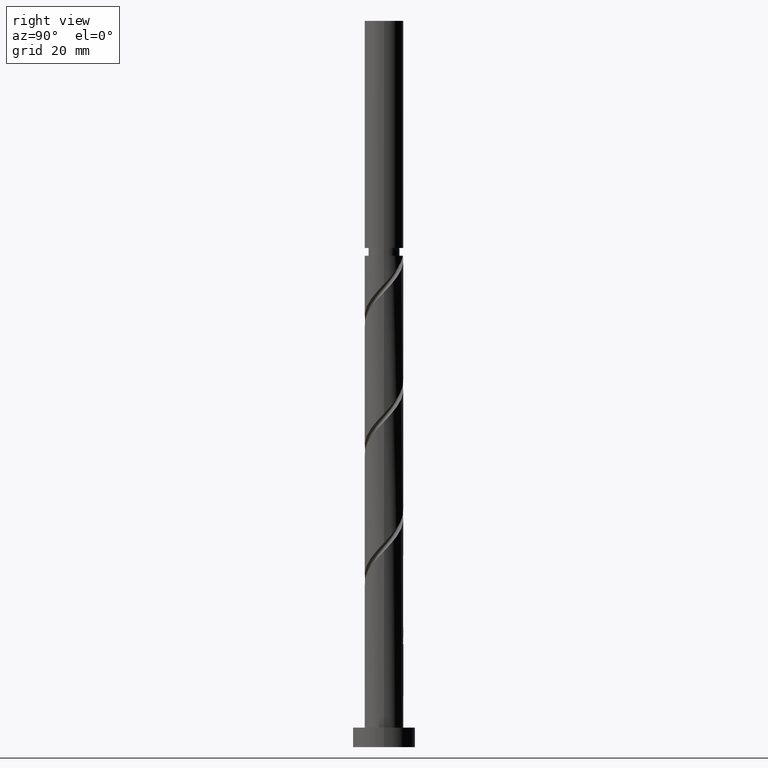
[diagram: clean part render]
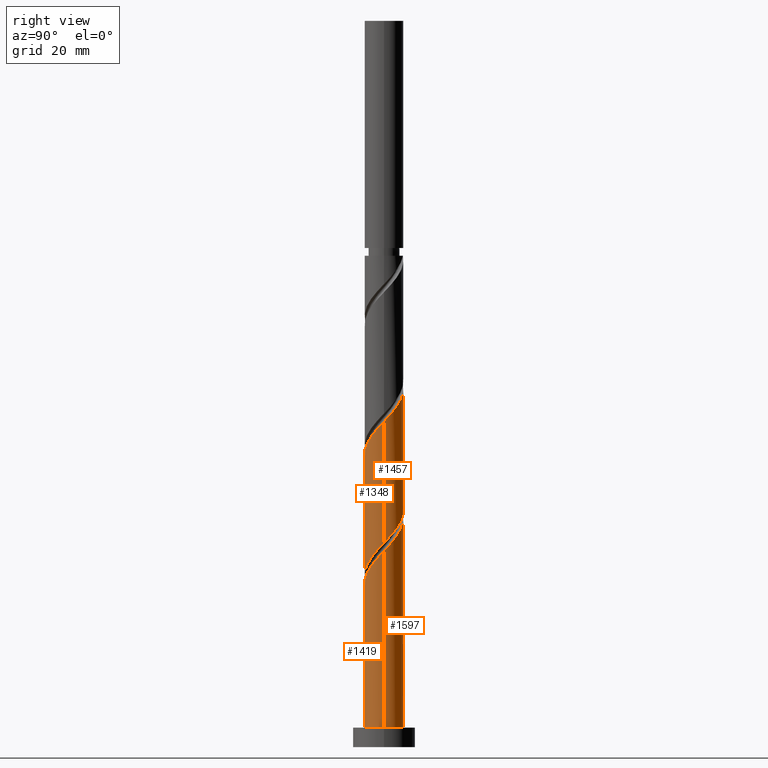
[diagram: same view with one multi-face feature highlighted, each face labeled with its STEP entity id]
A machine part, right view. The highlighted faces form ONE feature: a constant-radius fillet chain: 4 tangent blend faces with common blend radius 5 mm. The faces share edges in the B-rep.
Their STEP definitions:
[1] entity #1597 (Cylinder):
#5 = CARTESIAN_POINT ( 'NONE',  ( -3.310039237906718945, 3.804858702572656348, 31.39246738457750041 ) ) ;
#15 = CARTESIAN_POINT ( 'NONE',  ( -3.311684396980710599, 3.746030759990445436, 29.30913405124417892 ) ) ;
#29 = CARTESIAN_POINT ( 'NONE',  ( -0.9949874371066205203, 4.900000000000008349, 26.53135627346639325 ) ) ;
#48 = VERTEX_POINT ( 'NONE', #29 ) ;
#68 = CARTESIAN_POINT ( 'NONE',  ( 0.3498901989283815239, 5.030992581163166832, 27.22580071791083611 ) ) ;
#81 = CYLINDRICAL_SURFACE ( 'NONE', #872, 5.000000000000000000 ) ;
#95 = CARTESIAN_POINT ( 'NONE',  ( -5.000000000000007105, -3.065525810942137273E-15, 33.80112295158966162 ) ) ;
#96 = ORIENTED_EDGE ( 'NONE', *, *, #330, .T. ) ;
#130 = CARTESIAN_POINT ( 'NONE',  ( 5.000000000000008882, -1.794454133234422005E-16, 50.46778961825631882 ) ) ;
#143 = CARTESIAN_POINT ( 'NONE',  ( 4.475514850455503790, 2.229297383336807936, 52.92024516235528608 ) ) ;
#145 = CARTESIAN_POINT ( 'NONE',  ( -4.182022282074155939, 2.818510091388752858, 32.78135627346640035 ) ) ;
#160 = CARTESIAN_POINT ( 'NONE',  ( -4.741018197097065290, 1.588315603019298639, 65.42024516235527187 ) ) ;
#161 = VERTEX_POINT ( 'NONE', #130 ) ;
#170 = CARTESIAN_POINT ( 'NONE',  ( -4.741018197097065290, 1.588315603019298639, 32.08691182902195749 ) ) ;
#171 =( BOUNDED_CURVE ( )  B_SPLINE_CURVE ( 2, ( #178, #1136, #1003, #859, #15, #1524, #570, #713, #170, #1633, #1384, #1115, #324 ),
 .UNSPECIFIED., .F., .T. ) 
 B_SPLINE_CURVE_WITH_KNOTS ( ( 3, 2, 2, 2, 2, 2, 3 ),
 ( 0.000000000000000000, 0.01041666666666662966, 0.02083333333333337034, 0.03125000000000000000, 0.04166666666666662966, 0.05208333333333337034, 0.05453176698144637097 ),
 .UNSPECIFIED. ) 
 CURVE ( )  GEOMETRIC_REPRESENTATION_ITEM ( )  RATIONAL_B_SPLINE_CURVE ( ( 0.9090909090909183865, 0.9013135103398366432, 0.9090909090909183865, 0.9013135103398366432, 0.9090909090909183865, 0.9013135103398366432, 0.9090909090909183865, 0.9013135103398366432, 0.9090909090909183865, 0.9013135103398366432, 0.9090909090909183865, 0.9072628343904119985, 0.9062941362546385049 ) ) 
 REPRESENTATION_ITEM ( '' )  );
#177 = CARTESIAN_POINT ( 'NONE',  ( -0.3071292586678960879, 4.990558247177372841, 27.92024516235527898 ) ) ;
#178 = CARTESIAN_POINT ( 'NONE',  ( -0.9949874371066205203, 4.900000000000008349, 26.53135627346639325 ) ) ;
#186 = ORIENTED_EDGE ( 'NONE', *, *, #1642, .F. ) ;
#206 = EDGE_CURVE ( 'NONE', #161, #764, #1661, .T. ) ;
#249 = CARTESIAN_POINT ( 'NONE',  ( -0.3498901989283760283, 5.030992581163177491, 59.17024516235529319 ) ) ;
#264 = CARTESIAN_POINT ( 'NONE',  ( 3.310039237906730492, 3.804858702572660345, 55.00357849568861468 ) ) ;
#287 = CARTESIAN_POINT ( 'NONE',  ( -2.761260863840566682, 4.168385591787596489, 30.69802294013306465 ) ) ;
#294 = DIRECTION ( 'NONE',  ( 0.000000000000000000, 0.000000000000000000, 1.000000000000000000 ) ) ;
#306 = VERTEX_POINT ( 'NONE', #737 ) ;
#316 = CARTESIAN_POINT ( 'NONE',  ( -5.000000000000000000, 0.000000000000000000, 187.0000000000000000 ) ) ;
#324 = CARTESIAN_POINT ( 'NONE',  ( -5.000000000000007105, -3.065525810942137273E-15, 33.80112295158966162 ) ) ;
#330 = EDGE_CURVE ( 'NONE', #857, #865, #530, .T. ) ;
#352 = FACE_OUTER_BOUND ( 'NONE', #1152, .T. ) ;
#369 = LINE ( 'NONE', #1163, #1082 ) ;
#385 = CARTESIAN_POINT ( 'NONE',  ( 0.9641487162641800834, 4.950123913191589509, 57.78135627346639325 ) ) ;
#421 = CARTESIAN_POINT ( 'NONE',  ( 5.000000000000007994, 0.5025189076296053825, 51.00121598744561169 ) ) ;
#429 = CARTESIAN_POINT ( 'NONE',  ( -5.000000000000007105, -3.065525810942137273E-15, 67.13445628492299022 ) ) ;
#469 = VERTEX_POINT ( 'NONE', #95 ) ;
#493 = DIRECTION ( 'NONE',  ( -1.000000000000000000, 0.000000000000000000, 0.000000000000000000 ) ) ;
#530 = CIRCLE ( 'NONE', #1507, 5.000000000000000000 ) ;
#545 = CARTESIAN_POINT ( 'NONE',  ( -3.804858702572663010, 3.310039237906727383, 63.33691182902195749 ) ) ;
#563 = DIRECTION ( 'NONE',  ( -0.000000000000000000, -0.000000000000000000, -1.000000000000000000 ) ) ;
#569 = CARTESIAN_POINT ( 'NONE',  ( -4.769007418836828549, 1.640084675284861015, 34.17024516235528608 ) ) ;
#570 = CARTESIAN_POINT ( 'NONE',  ( -4.168385591787603595, 2.761260863840572899, 30.69802294013306110 ) ) ;
#577 = CARTESIAN_POINT ( 'NONE',  ( -4.475514850455492244, 2.229297383336808380, 33.47580071791084322 ) ) ;
#578 = CARTESIAN_POINT ( 'NONE',  ( -4.999999999999998224, 5.787114579681064564E-15, 35.92825626200978917 ) ) ;
#583 = CARTESIAN_POINT ( 'NONE',  ( -5.000000000000008882, 0.1537097582883592828, 66.97129259689485536 ) ) ;
#584 = ORIENTED_EDGE ( 'NONE', *, *, #1591, .F. ) ;
#609 = CARTESIAN_POINT ( 'NONE',  ( 0.000000000000000000, 0.000000000000000000, 187.0000000000000000 ) ) ;
#636 = EDGE_CURVE ( 'NONE', #306, #876, #1042, .T. ) ;
#692 = CARTESIAN_POINT ( 'NONE',  ( 3.746030759990448100, 3.311684396980707046, 54.30913405124416471 ) ) ;
#694 = CARTESIAN_POINT ( 'NONE',  ( -2.212482489774413086, 4.531912481002537518, 30.00357849568861113 ) ) ;
#701 = VECTOR ( 'NONE', #563, 1000.000000000000000 ) ;
#705 = DIRECTION ( 'NONE',  ( -0.000000000000000000, -0.000000000000000000, -1.000000000000000000 ) ) ;
#713 = CARTESIAN_POINT ( 'NONE',  ( -4.531912481002547288, 2.212482489774419303, 31.39246738457749686 ) ) ;
#719 = CARTESIAN_POINT ( 'NONE',  ( -0.9641487162641736441, 4.950123913191579739, 28.61468960679973250 ) ) ;
#731 = LINE ( 'NONE', #316, #1625 ) ;
#737 = CARTESIAN_POINT ( 'NONE',  ( -4.999999999999998224, 5.787114579681064564E-15, 35.92825626200978917 ) ) ;
#739 = ORIENTED_EDGE ( 'NONE', *, *, #1503, .T. ) ;
#748 = DIRECTION ( 'NONE',  ( -0.000000000000000000, -0.000000000000000000, -1.000000000000000000 ) ) ;
#764 = VERTEX_POINT ( 'NONE', #830 ) ;
#790 = CARTESIAN_POINT ( 'NONE',  ( -2.818510091388757743, 4.182022282074165709, 61.94802294013305755 ) ) ;
#807 = CARTESIAN_POINT ( 'NONE',  ( 1.588315603019300637, 4.741018197097065290, 57.08691182902194328 ) ) ;
#823 = EDGE_CURVE ( 'NONE', #48, #876, #995, .T. ) ;
#830 = CARTESIAN_POINT ( 'NONE',  ( -5.000000000000007105, -3.065525810942137273E-15, 67.13445628492299022 ) ) ;
#847 = CARTESIAN_POINT ( 'NONE',  ( -4.950123913191589509, 0.9641487162641770858, 66.11468960679972895 ) ) ;
#857 = VERTEX_POINT ( 'NONE', #1120 ) ;
#859 = CARTESIAN_POINT ( 'NONE',  ( -2.818510091388757743, 4.182022282074165709, 28.61468960679973961 ) ) ;
#865 = VERTEX_POINT ( 'NONE', #1637 ) ;
#872 = AXIS2_PLACEMENT_3D ( 'NONE', #609, #1690, #493 ) ;
#876 = VERTEX_POINT ( 'NONE', #1340 ) ;
#910 = ORIENTED_EDGE ( 'NONE', *, *, #206, .F. ) ;
#938 = AXIS2_PLACEMENT_3D ( 'NONE', #1224, #1744, #970 ) ;
#945 = ORIENTED_EDGE ( 'NONE', *, *, #636, .F. ) ;
#965 = CARTESIAN_POINT ( 'NONE',  ( 4.900000000000008349, 0.9949874371066211864, 51.53135627346640035 ) ) ;
#970 = DIRECTION ( 'NONE',  ( 0.000000000000000000, 1.000000000000000000, -1.387778780781445676E-15 ) ) ;
#979 = CARTESIAN_POINT ( 'NONE',  ( -1.588315603019294198, 4.741018197097059073, 29.30913405124417892 ) ) ;
#980 = CARTESIAN_POINT ( 'NONE',  ( 5.000000000000000000, 6.123233995736766282E-16, 187.0000000000000000 ) ) ;
#984 = CARTESIAN_POINT ( 'NONE',  ( -4.531912481002547288, 2.212482489774419303, 64.72580071791085743 ) ) ;
#995 = CIRCLE ( 'NONE', #938, 5.000000000000000000 ) ;
#1003 = CARTESIAN_POINT ( 'NONE',  ( -2.229297383336810157, 4.475514850455501126, 27.92024516235527543 ) ) ;
#1007 = CARTESIAN_POINT ( 'NONE',  ( -4.990558247177381723, 0.3071292586678987524, 66.80913405124417181 ) ) ;
#1042 =( BOUNDED_CURVE ( )  B_SPLINE_CURVE ( 2, ( #578, #1046, #1125, #569, #577, #145, #1227, #5, #287, #694, #979, #719, #177, #68, #1671 ),
 .UNSPECIFIED., .F., .T. ) 
 B_SPLINE_CURVE_WITH_KNOTS ( ( 3, 2, 2, 2, 2, 2, 2, 3 ),
 ( 0.9295317669814463502, 0.9375000000000000000, 0.9479166666666666297, 0.9583333333333333703, 0.9687500000000000000, 0.9791666666666666297, 0.9895833333333333703, 1.000000000000000000 ),
 .UNSPECIFIED. ) 
 CURVE ( )  GEOMETRIC_REPRESENTATION_ITEM ( )  RATIONAL_B_SPLINE_CURVE ( ( 0.9062941362546301782, 0.9031415850403345935, 0.9090909090909098378, 0.9013135103398283166, 0.9090909090909098378, 0.9013135103398283166, 0.9090909090909098378, 0.9013135103398283166, 0.9090909090909098378, 0.9013135103398283166, 0.9090909090909098378, 0.9013135103398283166, 0.9090909090909098378, 0.9013135103398283166, 0.9090909090909098378 ) ) 
 REPRESENTATION_ITEM ( '' )  );
#1046 = CARTESIAN_POINT ( 'NONE',  ( -4.999999999999998224, 0.5025189076296099344, 35.39482989282052472 ) ) ;
#1082 = VECTOR ( 'NONE', #748, 1000.000000000000000 ) ;
#1100 = CARTESIAN_POINT ( 'NONE',  ( 5.000000000000008882, -1.794454133234422005E-16, 50.46778961825631882 ) ) ;
#1105 = CARTESIAN_POINT ( 'NONE',  ( 0.000000000000000000, 0.000000000000000000, 5.000000000000000000 ) ) ;
#1115 = CARTESIAN_POINT ( 'NONE',  ( -5.000000000000008882, 0.1537097582883645286, 33.63795926356151966 ) ) ;
#1120 = CARTESIAN_POINT ( 'NONE',  ( 5.000000000000000000, 6.123233995736766282E-16, 5.000000000000000000 ) ) ;
#1125 = CARTESIAN_POINT ( 'NONE',  ( -4.899999999999997691, 0.9949874371066209644, 34.86468960679972895 ) ) ;
#1126 = LINE ( 'NONE', #980, #701 ) ;
#1136 = CARTESIAN_POINT ( 'NONE',  ( -1.640084675284862792, 4.769007418836840095, 27.22580071791083967 ) ) ;
#1152 = EDGE_LOOP ( 'NONE', ( #910, #739, #96, #186, #1397, #1416, #945, #584 ) ) ;
#1163 = CARTESIAN_POINT ( 'NONE',  ( -5.000000000000000000, 0.000000000000000000, 187.0000000000000000 ) ) ;
#1203 = CARTESIAN_POINT ( 'NONE',  ( -2.229297383336810157, 4.475514850455501126, 61.25357849568861468 ) ) ;
#1224 = CARTESIAN_POINT ( 'NONE',  ( 0.000000000000000000, 0.000000000000000000, 26.53135627346639325 ) ) ;
#1227 = CARTESIAN_POINT ( 'NONE',  ( -3.746030759990437886, 3.311684396980704825, 32.08691182902195749 ) ) ;
#1239 = CARTESIAN_POINT ( 'NONE',  ( 2.761260863840573343, 4.168385591787602706, 55.69802294013307176 ) ) ;
#1244 = DIRECTION ( 'NONE',  ( 1.000000000000000000, 0.000000000000000000, 0.000000000000000000 ) ) ;
#1332 = CARTESIAN_POINT ( 'NONE',  ( 4.769007418836840984, 1.640084675284861682, 52.22580071791085032 ) ) ;
#1340 = CARTESIAN_POINT ( 'NONE',  ( 0.9949874371066220746, 4.899999999999996803, 26.53135627346639325 ) ) ;
#1384 = CARTESIAN_POINT ( 'NONE',  ( -4.990558247177381723, 0.3071292586678987524, 33.47580071791084322 ) ) ;
#1397 = ORIENTED_EDGE ( 'NONE', *, *, #1497, .F. ) ;
#1416 = ORIENTED_EDGE ( 'NONE', *, *, #823, .T. ) ;
#1462 = CARTESIAN_POINT ( 'NONE',  ( 0.3071292586679018610, 4.990558247177382611, 58.47580071791082190 ) ) ;
#1476 = CARTESIAN_POINT ( 'NONE',  ( 4.182022282074167485, 2.818510091388755079, 53.61468960679973605 ) ) ;
#1497 = EDGE_CURVE ( 'NONE', #48, #469, #171, .T. ) ;
#1503 = EDGE_CURVE ( 'NONE', #161, #857, #1126, .T. ) ;
#1507 = AXIS2_PLACEMENT_3D ( 'NONE', #1105, #294, #1244 ) ;
#1520 = CARTESIAN_POINT ( 'NONE',  ( -4.168385591787603595, 2.761260863840572899, 64.03135627346640035 ) ) ;
#1524 = CARTESIAN_POINT ( 'NONE',  ( -3.804858702572663010, 3.310039237906727383, 30.00357849568862179 ) ) ;
#1584 = CARTESIAN_POINT ( 'NONE',  ( 2.212482489774421079, 4.531912481002545512, 56.39246738457751462 ) ) ;
#1588 = CARTESIAN_POINT ( 'NONE',  ( -0.9949874371066207424, 4.900000000000008349, 59.86468960679973605 ) ) ;
#1591 = EDGE_CURVE ( 'NONE', #764, #306, #731, .T. ) ;
#1597 = ADVANCED_FACE ( 'NONE', ( #352 ), #81, .T. ) ;
#1625 = VECTOR ( 'NONE', #705, 1000.000000000000000 ) ;
#1633 = CARTESIAN_POINT ( 'NONE',  ( -4.950123913191589509, 0.9641487162641770858, 32.78135627346640035 ) ) ;
#1637 = CARTESIAN_POINT ( 'NONE',  ( -5.000000000000000000, 0.000000000000000000, 5.000000000000000000 ) ) ;
#1642 = EDGE_CURVE ( 'NONE', #469, #865, #369, .T. ) ;
#1661 =( BOUNDED_CURVE ( )  B_SPLINE_CURVE ( 2, ( #1100, #421, #965, #1332, #143, #1476, #692, #264, #1239, #1584, #807, #385, #1462, #249, #1588, #1743, #1203, #790, #1726, #545, #1520, #984, #160, #847, #1007, #583, #429 ),
 .UNSPECIFIED., .F., .T. ) 
 B_SPLINE_CURVE_WITH_KNOTS ( ( 3, 2, 2, 2, 2, 2, 2, 2, 2, 2, 2, 2, 2, 3 ),
 ( 0.1795317669814463502, 0.1875000000000000000, 0.1979166666666666297, 0.2083333333333333703, 0.2187500000000000000, 0.2291666666666666297, 0.2395833333333333703, 0.2500000000000000000, 0.2604166666666666297, 0.2708333333333333703, 0.2812500000000000000, 0.2916666666666666297, 0.3020833333333333703, 0.3045317669814464612 ),
 .UNSPECIFIED. ) 
 CURVE ( )  GEOMETRIC_REPRESENTATION_ITEM ( )  RATIONAL_B_SPLINE_CURVE ( ( 0.9062941362546386159, 0.9031415850403428092, 0.9090909090909183865, 0.9013135103398366432, 0.9090909090909183865, 0.9013135103398366432, 0.9090909090909183865, 0.9013135103398366432, 0.9090909090909183865, 0.9013135103398366432, 0.9090909090909183865, 0.9013135103398366432, 0.9090909090909183865, 0.9013135103398366432, 0.9090909090909183865, 0.9013135103398366432, 0.9090909090909183865, 0.9013135103398366432, 0.9090909090909183865, 0.9013135103398366432, 0.9090909090909183865, 0.9013135103398366432, 0.9090909090909183865, 0.9013135103398366432, 0.9090909090909183865, 0.9072628343904119985, 0.9062941362546385049 ) ) 
 REPRESENTATION_ITEM ( '' )  );
#1671 = CARTESIAN_POINT ( 'NONE',  ( 0.9949874371066220746, 4.899999999999996803, 26.53135627346638969 ) ) ;
#1690 = DIRECTION ( 'NONE',  ( -0.000000000000000000, -0.000000000000000000, -1.000000000000000000 ) ) ;
#1726 = CARTESIAN_POINT ( 'NONE',  ( -3.311684396980710599, 3.746030759990445436, 62.64246738457750041 ) ) ;
#1743 = CARTESIAN_POINT ( 'NONE',  ( -1.640084675284862792, 4.769007418836840095, 60.55913405124417892 ) ) ;
#1744 = DIRECTION ( 'NONE',  ( -3.851859888774468203E-31, -1.734723475976806700E-15, -1.000000000000000000 ) ) ;
[2] entity #1419 (Cylinder):
#51 = FACE_OUTER_BOUND ( 'NONE', #559, .T. ) ;
#53 = CARTESIAN_POINT ( 'NONE',  ( 4.168385591787601818, -2.761260863840574231, 47.36468960679973605 ) ) ;
#61 = CARTESIAN_POINT ( 'NONE',  ( -3.310039237906727827, -3.804858702572662121, 38.33691182902193617 ) ) ;
#88 = EDGE_CURVE ( 'NONE', #865, #857, #1471, .T. ) ;
#95 = CARTESIAN_POINT ( 'NONE',  ( -5.000000000000007105, -3.065525810942137273E-15, 33.80112295158966162 ) ) ;
#130 = CARTESIAN_POINT ( 'NONE',  ( 5.000000000000008882, -1.794454133234422005E-16, 50.46778961825631882 ) ) ;
#139 = AXIS2_PLACEMENT_3D ( 'NONE', #814, #940, #1084 ) ;
#150 = ORIENTED_EDGE ( 'NONE', *, *, #968, .F. ) ;
#153 = DIRECTION ( 'NONE',  ( -1.000000000000000000, 0.000000000000000000, 0.000000000000000000 ) ) ;
#159 = CARTESIAN_POINT ( 'NONE',  ( -1.588315603019300193, -4.741018197097065290, 40.42024516235527898 ) ) ;
#161 = VERTEX_POINT ( 'NONE', #130 ) ;
#230 =( BOUNDED_CURVE ( )  B_SPLINE_CURVE ( 2, ( #1140, #999, #1654, #1005, #1380, #734, #336, #61, #465, #572, #159, #1271, #1412, #983, #1119, #1518, #319, #310, #708, #611, #53, #990, #854, #602, #716, #1394, #845 ),
 .UNSPECIFIED., .F., .T. ) 
 B_SPLINE_CURVE_WITH_KNOTS ( ( 3, 2, 2, 2, 2, 2, 2, 2, 2, 2, 2, 2, 2, 3 ),
 ( 0.05453176698144637791, 0.06250000000000000000, 0.07291666666666662966, 0.08333333333333337034, 0.09375000000000000000, 0.1041666666666666297, 0.1145833333333333703, 0.1250000000000000000, 0.1354166666666666297, 0.1458333333333333703, 0.1562500000000000000, 0.1666666666666666297, 0.1770833333333333703, 0.1795317669814463502 ),
 .UNSPECIFIED. ) 
 CURVE ( )  GEOMETRIC_REPRESENTATION_ITEM ( )  RATIONAL_B_SPLINE_CURVE ( ( 0.9062941362546385049, 0.9031415850403428092, 0.9090909090909183865, 0.9013135103398366432, 0.9090909090909183865, 0.9013135103398366432, 0.9090909090909183865, 0.9013135103398366432, 0.9090909090909183865, 0.9013135103398366432, 0.9090909090909183865, 0.9013135103398366432, 0.9090909090909183865, 0.9013135103398366432, 0.9090909090909183865, 0.9013135103398366432, 0.9090909090909183865, 0.9013135103398366432, 0.9090909090909183865, 0.9013135103398366432, 0.9090909090909183865, 0.9013135103398366432, 0.9090909090909183865, 0.9013135103398366432, 0.9090909090909183865, 0.9072628343904121095, 0.9062941362546386159 ) ) 
 REPRESENTATION_ITEM ( '' )  );
#310 = CARTESIAN_POINT ( 'NONE',  ( 2.818510091388755079, -4.182022282074167485, 45.28135627346639325 ) ) ;
#319 = CARTESIAN_POINT ( 'NONE',  ( 2.229297383336807936, -4.475514850455503790, 44.58691182902195038 ) ) ;
#336 = CARTESIAN_POINT ( 'NONE',  ( -3.746030759990445436, -3.311684396980708822, 37.64246738457750752 ) ) ;
#369 = LINE ( 'NONE', #1163, #1082 ) ;
#423 = AXIS2_PLACEMENT_3D ( 'NONE', #1011, #1651, #153 ) ;
#465 = CARTESIAN_POINT ( 'NONE',  ( -2.761260863840572899, -4.168385591787603595, 39.03135627346638614 ) ) ;
#469 = VERTEX_POINT ( 'NONE', #95 ) ;
#559 = EDGE_LOOP ( 'NONE', ( #887, #150, #1442, #1019 ) ) ;
#563 = DIRECTION ( 'NONE',  ( -0.000000000000000000, -0.000000000000000000, -1.000000000000000000 ) ) ;
#572 = CARTESIAN_POINT ( 'NONE',  ( -2.212482489774421079, -4.531912481002546400, 39.72580071791085032 ) ) ;
#602 = CARTESIAN_POINT ( 'NONE',  ( 4.950123913191589509, -0.9641487162641798614, 49.44802294013305755 ) ) ;
#611 = CARTESIAN_POINT ( 'NONE',  ( 3.804858702572662121, -3.310039237906727827, 46.67024516235527898 ) ) ;
#701 = VECTOR ( 'NONE', #563, 1000.000000000000000 ) ;
#708 = CARTESIAN_POINT ( 'NONE',  ( 3.311684396980709266, -3.746030759990445880, 45.97580071791082901 ) ) ;
#716 = CARTESIAN_POINT ( 'NONE',  ( 4.990558247177382611, -0.3071292586679017500, 50.14246738457749331 ) ) ;
#734 = CARTESIAN_POINT ( 'NONE',  ( -4.182022282074166597, -2.818510091388756411, 36.94802294013306465 ) ) ;
#748 = DIRECTION ( 'NONE',  ( -0.000000000000000000, -0.000000000000000000, -1.000000000000000000 ) ) ;
#814 = CARTESIAN_POINT ( 'NONE',  ( 0.000000000000000000, 0.000000000000000000, 5.000000000000000000 ) ) ;
#845 = CARTESIAN_POINT ( 'NONE',  ( 5.000000000000008882, -1.794454133234422005E-16, 50.46778961825631882 ) ) ;
#854 = CARTESIAN_POINT ( 'NONE',  ( 4.741018197097066178, -1.588315603019300415, 48.75357849568860757 ) ) ;
#857 = VERTEX_POINT ( 'NONE', #1120 ) ;
#865 = VERTEX_POINT ( 'NONE', #1637 ) ;
#887 = ORIENTED_EDGE ( 'NONE', *, *, #1503, .F. ) ;
#940 = DIRECTION ( 'NONE',  ( 0.000000000000000000, 0.000000000000000000, 1.000000000000000000 ) ) ;
#968 = EDGE_CURVE ( 'NONE', #469, #161, #230, .T. ) ;
#980 = CARTESIAN_POINT ( 'NONE',  ( 5.000000000000000000, 6.123233995736766282E-16, 187.0000000000000000 ) ) ;
#983 = CARTESIAN_POINT ( 'NONE',  ( 0.3498901989283792480, -5.030992581163177491, 42.50357849568860757 ) ) ;
#990 = CARTESIAN_POINT ( 'NONE',  ( 4.531912481002545512, -2.212482489774421079, 48.05913405124417892 ) ) ;
#999 = CARTESIAN_POINT ( 'NONE',  ( -5.000000000000007994, -0.5025189076296103785, 34.33454932077893318 ) ) ;
#1005 = CARTESIAN_POINT ( 'NONE',  ( -4.769007418836840984, -1.640084675284861904, 35.55913405124415760 ) ) ;
#1011 = CARTESIAN_POINT ( 'NONE',  ( 0.000000000000000000, 0.000000000000000000, 187.0000000000000000 ) ) ;
#1019 = ORIENTED_EDGE ( 'NONE', *, *, #88, .T. ) ;
#1082 = VECTOR ( 'NONE', #748, 1000.000000000000000 ) ;
#1084 = DIRECTION ( 'NONE',  ( 1.000000000000000000, 0.000000000000000000, 0.000000000000000000 ) ) ;
#1119 = CARTESIAN_POINT ( 'NONE',  ( 0.9949874371066211864, -4.900000000000008349, 43.19802294013305755 ) ) ;
#1120 = CARTESIAN_POINT ( 'NONE',  ( 5.000000000000000000, 6.123233995736766282E-16, 5.000000000000000000 ) ) ;
#1126 = LINE ( 'NONE', #980, #701 ) ;
#1140 = CARTESIAN_POINT ( 'NONE',  ( -5.000000000000007105, -3.065525810942137273E-15, 33.80112295158966162 ) ) ;
#1163 = CARTESIAN_POINT ( 'NONE',  ( -5.000000000000000000, 0.000000000000000000, 187.0000000000000000 ) ) ;
#1271 = CARTESIAN_POINT ( 'NONE',  ( -0.9641487162641770858, -4.950123913191589509, 41.11468960679972895 ) ) ;
#1380 = CARTESIAN_POINT ( 'NONE',  ( -4.475514850455501126, -2.229297383336809268, 36.25357849568862179 ) ) ;
#1394 = CARTESIAN_POINT ( 'NONE',  ( 5.000000000000008882, -0.1537097582883694968, 50.30462593022816264 ) ) ;
#1409 = CYLINDRICAL_SURFACE ( 'NONE', #423, 5.000000000000000000 ) ;
#1412 = CARTESIAN_POINT ( 'NONE',  ( -0.3071292586678989744, -4.990558247177381723, 41.80913405124417181 ) ) ;
#1419 = ADVANCED_FACE ( 'NONE', ( #51 ), #1409, .T. ) ;
#1442 = ORIENTED_EDGE ( 'NONE', *, *, #1642, .T. ) ;
#1471 = CIRCLE ( 'NONE', #139, 5.000000000000000000 ) ;
#1503 = EDGE_CURVE ( 'NONE', #161, #857, #1126, .T. ) ;
#1518 = CARTESIAN_POINT ( 'NONE',  ( 1.640084675284861682, -4.769007418836840984, 43.89246738457750041 ) ) ;
#1637 = CARTESIAN_POINT ( 'NONE',  ( -5.000000000000000000, 0.000000000000000000, 5.000000000000000000 ) ) ;
#1642 = EDGE_CURVE ( 'NONE', #469, #865, #369, .T. ) ;
#1651 = DIRECTION ( 'NONE',  ( -0.000000000000000000, -0.000000000000000000, -1.000000000000000000 ) ) ;
#1654 = CARTESIAN_POINT ( 'NONE',  ( -4.900000000000008349, -0.9949874371066216305, 34.86468960679972184 ) ) ;
[3] entity #1348 (Cylinder):
#27 = CARTESIAN_POINT ( 'NONE',  ( 0.9949874371066211864, -4.900000000000008349, 76.53135627346640035 ) ) ;
#36 = CARTESIAN_POINT ( 'NONE',  ( 4.741018197097066178, -1.588315603019300415, 82.08691182902191485 ) ) ;
#38 = CARTESIAN_POINT ( 'NONE',  ( -3.804858702572657680, -3.310039237906718057, 39.72580071791085032 ) ) ;
#43 = CARTESIAN_POINT ( 'NONE',  ( -4.900000000000008349, -0.9949874371066216305, 68.19802294013307176 ) ) ;
#46 = CARTESIAN_POINT ( 'NONE',  ( -4.950123913191580627, -0.9641487162641722009, 36.94802294013305044 ) ) ;
#69 = VERTEX_POINT ( 'NONE', #1349 ) ;
#121 = ORIENTED_EDGE ( 'NONE', *, *, #651, .F. ) ;
#166 = CARTESIAN_POINT ( 'NONE',  ( 4.990558247177382611, -0.3071292586679017500, 83.47580071791082901 ) ) ;
#168 = CARTESIAN_POINT ( 'NONE',  ( -2.229297383336808380, -4.475514850455492244, 41.80913405124417892 ) ) ;
#175 = CARTESIAN_POINT ( 'NONE',  ( -4.168385591787596489, -2.761260863840565793, 39.03135627346639325 ) ) ;
#181 = CARTESIAN_POINT ( 'NONE',  ( 4.950123913191589509, -0.9641487162641798614, 82.78135627346640035 ) ) ;
#184 = CARTESIAN_POINT ( 'NONE',  ( -4.990558247177372841, -0.3071292586678953662, 36.25357849568862889 ) ) ;
#201 = LINE ( 'NONE', #756, #677 ) ;
#297 = EDGE_CURVE ( 'NONE', #1212, #306, #1723, .T. ) ;
#302 = CARTESIAN_POINT ( 'NONE',  ( 5.000000000000008882, -1.794454133234422005E-16, 83.80112295158966162 ) ) ;
#304 = CARTESIAN_POINT ( 'NONE',  ( -0.9949874371066216305, -4.899999999999997691, 43.19802294013305044 ) ) ;
#306 = VERTEX_POINT ( 'NONE', #737 ) ;
#316 = CARTESIAN_POINT ( 'NONE',  ( -5.000000000000000000, 0.000000000000000000, 187.0000000000000000 ) ) ;
#321 = CARTESIAN_POINT ( 'NONE',  ( 4.999999999999999112, 6.968463550727070010E-15, 52.59492292867647478 ) ) ;
#326 = CARTESIAN_POINT ( 'NONE',  ( -4.182022282074166597, -2.818510091388756411, 70.28135627346638614 ) ) ;
#329 = CARTESIAN_POINT ( 'NONE',  ( 4.475514850455490468, -2.229297383336810157, 50.14246738457751462 ) ) ;
#425 = CYLINDRICAL_SURFACE ( 'NONE', #1408, 5.000000000000000000 ) ;
#435 = CARTESIAN_POINT ( 'NONE',  ( 3.311684396980709266, -3.746030759990445880, 79.30913405124415760 ) ) ;
#436 = CARTESIAN_POINT ( 'NONE',  ( 3.746030759990437442, -3.311684396980706602, 48.75357849568861468 ) ) ;
#441 = CARTESIAN_POINT ( 'NONE',  ( 0.9641487162641707576, -4.950123913191579739, 45.28135627346638614 ) ) ;
#449 = CARTESIAN_POINT ( 'NONE',  ( 5.000000000000008882, -0.1537097582883729940, 83.63795926356148414 ) ) ;
#456 = CARTESIAN_POINT ( 'NONE',  ( -4.769007418836840984, -1.640084675284861904, 68.89246738457750041 ) ) ;
#523 = CARTESIAN_POINT ( 'NONE',  ( 0.000000000000000000, 0.000000000000000000, 187.0000000000000000 ) ) ;
#558 = CARTESIAN_POINT ( 'NONE',  ( 1.588315603019292865, -4.741018197097059073, 45.97580071791083611 ) ) ;
#574 = CARTESIAN_POINT ( 'NONE',  ( 4.182022282074153274, -2.818510091388755079, 49.44802294013307176 ) ) ;
#581 = CARTESIAN_POINT ( 'NONE',  ( 2.229297383336807936, -4.475514850455503790, 77.92024516235527187 ) ) ;
#590 = CARTESIAN_POINT ( 'NONE',  ( -5.000000000000007105, -3.065525810942137273E-15, 67.13445628492299022 ) ) ;
#593 = CARTESIAN_POINT ( 'NONE',  ( -4.999999999999998224, -0.1537097582883631686, 36.09141995003794534 ) ) ;
#651 = EDGE_CURVE ( 'NONE', #69, #1212, #201, .T. ) ;
#670 = ORIENTED_EDGE ( 'NONE', *, *, #1591, .T. ) ;
#677 = VECTOR ( 'NONE', #1124, 1000.000000000000000 ) ;
#705 = DIRECTION ( 'NONE',  ( -0.000000000000000000, -0.000000000000000000, -1.000000000000000000 ) ) ;
#718 = CARTESIAN_POINT ( 'NONE',  ( 2.212482489774412642, -4.531912481002538406, 46.67024516235528608 ) ) ;
#731 = LINE ( 'NONE', #316, #1625 ) ;
#737 = CARTESIAN_POINT ( 'NONE',  ( -4.999999999999998224, 5.787114579681064564E-15, 35.92825626200978917 ) ) ;
#744 = CARTESIAN_POINT ( 'NONE',  ( 3.804858702572662121, -3.310039237906727827, 80.00357849568860047 ) ) ;
#756 = CARTESIAN_POINT ( 'NONE',  ( 5.000000000000000000, 6.123233995736766282E-16, 187.0000000000000000 ) ) ;
#764 = VERTEX_POINT ( 'NONE', #830 ) ;
#811 = FACE_OUTER_BOUND ( 'NONE', #1669, .T. ) ;
#830 = CARTESIAN_POINT ( 'NONE',  ( -5.000000000000007105, -3.065525810942137273E-15, 67.13445628492299022 ) ) ;
#837 = CARTESIAN_POINT ( 'NONE',  ( -4.475514850455501126, -2.229297383336809268, 69.58691182902195749 ) ) ;
#838 = CARTESIAN_POINT ( 'NONE',  ( 4.899999999999997691, -0.9949874371066218526, 51.53135627346640035 ) ) ;
#856 = CARTESIAN_POINT ( 'NONE',  ( 4.999999999999999112, -0.5025189076296037172, 52.06149655948720323 ) ) ;
#863 = CARTESIAN_POINT ( 'NONE',  ( -0.9641487162641770858, -4.950123913191589509, 74.44802294013307176 ) ) ;
#873 = CARTESIAN_POINT ( 'NONE',  ( -0.3071292586678989744, -4.990558247177381723, 75.14246738457750041 ) ) ;
#941 = ORIENTED_EDGE ( 'NONE', *, *, #297, .F. ) ;
#954 = EDGE_CURVE ( 'NONE', #764, #69, #1437, .T. ) ;
#974 = CARTESIAN_POINT ( 'NONE',  ( 2.761260863840563573, -4.168385591787598266, 47.36468960679974316 ) ) ;
#1124 = DIRECTION ( 'NONE',  ( -0.000000000000000000, -0.000000000000000000, -1.000000000000000000 ) ) ;
#1130 = CARTESIAN_POINT ( 'NONE',  ( -5.000000000000006217, -0.5025189076296153745, 67.66788265411226178 ) ) ;
#1132 = CARTESIAN_POINT ( 'NONE',  ( -4.741018197097059073, -1.588315603019292865, 37.64246738457752173 ) ) ;
#1157 = CARTESIAN_POINT ( 'NONE',  ( 0.3498901989283792480, -5.030992581163177491, 75.83691182902195749 ) ) ;
#1212 = VERTEX_POINT ( 'NONE', #1586 ) ;
#1222 = ORIENTED_EDGE ( 'NONE', *, *, #954, .F. ) ;
#1249 = CARTESIAN_POINT ( 'NONE',  ( -2.212482489774421079, -4.531912481002546400, 73.05913405124415760 ) ) ;
#1258 = CARTESIAN_POINT ( 'NONE',  ( -2.818510091388753303, -4.182022282074155939, 41.11468960679972184 ) ) ;
#1265 = CARTESIAN_POINT ( 'NONE',  ( -4.531912481002538406, -2.212482489774412642, 38.33691182902195038 ) ) ;
#1280 = CARTESIAN_POINT ( 'NONE',  ( -3.310039237906727827, -3.804858702572662121, 71.67024516235530029 ) ) ;
#1348 = ADVANCED_FACE ( 'NONE', ( #811 ), #425, .T. ) ;
#1349 = CARTESIAN_POINT ( 'NONE',  ( 5.000000000000008882, -1.794454133234422005E-16, 83.80112295158966162 ) ) ;
#1372 = CARTESIAN_POINT ( 'NONE',  ( -3.311684396980706158, -3.746030759990437442, 40.42024516235529319 ) ) ;
#1396 = CARTESIAN_POINT ( 'NONE',  ( 0.3071292586678939784, -4.990558247177372841, 44.58691182902195749 ) ) ;
#1403 = CARTESIAN_POINT ( 'NONE',  ( 4.168385591787601818, -2.761260863840574231, 80.69802294013304333 ) ) ;
#1408 = AXIS2_PLACEMENT_3D ( 'NONE', #523, #1721, #1730 ) ;
#1437 =( BOUNDED_CURVE ( )  B_SPLINE_CURVE ( 2, ( #590, #1130, #43, #456, #837, #326, #1535, #1280, #1664, #1249, #1504, #863, #873, #1157, #27, #1646, #581, #1511, #435, #744, #1403, #1636, #36, #181, #166, #449, #302 ),
 .UNSPECIFIED., .F., .T. ) 
 B_SPLINE_CURVE_WITH_KNOTS ( ( 3, 2, 2, 2, 2, 2, 2, 2, 2, 2, 2, 2, 2, 3 ),
 ( 0.3045317669814464612, 0.3125000000000000000, 0.3229166666666666297, 0.3333333333333333703, 0.3437500000000000000, 0.3541666666666666297, 0.3645833333333333703, 0.3750000000000000000, 0.3854166666666666297, 0.3958333333333333703, 0.4062500000000000000, 0.4166666666666666297, 0.4270833333333333703, 0.4295317669814462946 ),
 .UNSPECIFIED. ) 
 CURVE ( )  GEOMETRIC_REPRESENTATION_ITEM ( )  RATIONAL_B_SPLINE_CURVE ( ( 0.9062941362546385049, 0.9031415850403430312, 0.9090909090909183865, 0.9013135103398366432, 0.9090909090909183865, 0.9013135103398366432, 0.9090909090909183865, 0.9013135103398366432, 0.9090909090909183865, 0.9013135103398366432, 0.9090909090909183865, 0.9013135103398366432, 0.9090909090909183865, 0.9013135103398366432, 0.9090909090909183865, 0.9013135103398366432, 0.9090909090909183865, 0.9013135103398366432, 0.9090909090909183865, 0.9013135103398366432, 0.9090909090909183865, 0.9013135103398366432, 0.9090909090909183865, 0.9013135103398366432, 0.9090909090909183865, 0.9072628343904121095, 0.9062941362546386159 ) ) 
 REPRESENTATION_ITEM ( '' )  );
#1504 = CARTESIAN_POINT ( 'NONE',  ( -1.588315603019300193, -4.741018197097065290, 73.75357849568860047 ) ) ;
#1505 = CARTESIAN_POINT ( 'NONE',  ( 4.769007418836825885, -1.640084675284864346, 50.83691182902194328 ) ) ;
#1511 = CARTESIAN_POINT ( 'NONE',  ( 2.818510091388755079, -4.182022282074167485, 78.61468960679975737 ) ) ;
#1528 = CARTESIAN_POINT ( 'NONE',  ( -4.999999999999998224, 5.787114579681064564E-15, 35.92825626200978917 ) ) ;
#1535 = CARTESIAN_POINT ( 'NONE',  ( -3.746030759990445436, -3.311684396980708822, 70.97580071791082901 ) ) ;
#1586 = CARTESIAN_POINT ( 'NONE',  ( 4.999999999999999112, 6.968463550727070010E-15, 52.59492292867647478 ) ) ;
#1591 = EDGE_CURVE ( 'NONE', #764, #306, #731, .T. ) ;
#1625 = VECTOR ( 'NONE', #705, 1000.000000000000000 ) ;
#1626 = CARTESIAN_POINT ( 'NONE',  ( -0.3498901989283830782, -5.030992581163167721, 43.89246738457751462 ) ) ;
#1636 = CARTESIAN_POINT ( 'NONE',  ( 4.531912481002545512, -2.212482489774421079, 81.39246738457750041 ) ) ;
#1638 = CARTESIAN_POINT ( 'NONE',  ( 3.310039237906717613, -3.804858702572657680, 48.05913405124417181 ) ) ;
#1646 = CARTESIAN_POINT ( 'NONE',  ( 1.640084675284861682, -4.769007418836840984, 77.22580071791085743 ) ) ;
#1657 = CARTESIAN_POINT ( 'NONE',  ( -1.640084675284862126, -4.769007418836828549, 42.50357849568862179 ) ) ;
#1664 = CARTESIAN_POINT ( 'NONE',  ( -2.761260863840572899, -4.168385591787603595, 72.36468960679972895 ) ) ;
#1669 = EDGE_LOOP ( 'NONE', ( #121, #1222, #670, #941 ) ) ;
#1721 = DIRECTION ( 'NONE',  ( -0.000000000000000000, -0.000000000000000000, -1.000000000000000000 ) ) ;
#1723 =( BOUNDED_CURVE ( )  B_SPLINE_CURVE ( 2, ( #321, #856, #838, #1505, #329, #574, #436, #1638, #974, #718, #558, #441, #1396, #1626, #304, #1657, #168, #1258, #1372, #38, #175, #1265, #1132, #46, #184, #593, #1528 ),
 .UNSPECIFIED., .F., .T. ) 
 B_SPLINE_CURVE_WITH_KNOTS ( ( 3, 2, 2, 2, 2, 2, 2, 2, 2, 2, 2, 2, 2, 3 ),
 ( 0.8045317669814462391, 0.8125000000000000000, 0.8229166666666666297, 0.8333333333333333703, 0.8437500000000000000, 0.8541666666666666297, 0.8645833333333333703, 0.8750000000000000000, 0.8854166666666666297, 0.8958333333333333703, 0.9062500000000000000, 0.9166666666666666297, 0.9270833333333333703, 0.9295317669814463502 ),
 .UNSPECIFIED. ) 
 CURVE ( )  GEOMETRIC_REPRESENTATION_ITEM ( )  RATIONAL_B_SPLINE_CURVE ( ( 0.9062941362546301782, 0.9031415850403343715, 0.9090909090909098378, 0.9013135103398283166, 0.9090909090909098378, 0.9013135103398283166, 0.9090909090909098378, 0.9013135103398283166, 0.9090909090909098378, 0.9013135103398283166, 0.9090909090909098378, 0.9013135103398283166, 0.9090909090909098378, 0.9013135103398283166, 0.9090909090909098378, 0.9013135103398283166, 0.9090909090909098378, 0.9013135103398283166, 0.9090909090909098378, 0.9013135103398283166, 0.9090909090909098378, 0.9013135103398283166, 0.9090909090909098378, 0.9013135103398283166, 0.9090909090909098378, 0.9072628343904035608, 0.9062941362546301782 ) ) 
 REPRESENTATION_ITEM ( '' )  );
#1730 = DIRECTION ( 'NONE',  ( -1.000000000000000000, 0.000000000000000000, 0.000000000000000000 ) ) ;
[4] entity #1457 (Cylinder):
#22 = CARTESIAN_POINT ( 'NONE',  ( -4.999999999999998224, 5.787114579681064564E-15, 69.26158959534315329 ) ) ;
#33 = FACE_OUTER_BOUND ( 'NONE', #975, .T. ) ;
#55 = CARTESIAN_POINT ( 'NONE',  ( -5.000000000000007994, -1.420609522143917172E-15, 100.4677896182563188 ) ) ;
#69 = VERTEX_POINT ( 'NONE', #1349 ) ;
#85 = CARTESIAN_POINT ( 'NONE',  ( -4.531912481002547288, 2.212482489774419303, 98.05913405124420024 ) ) ;
#103 = CARTESIAN_POINT ( 'NONE',  ( 3.311684396980706158, 3.746030759990436554, 57.08691182902195038 ) ) ;
#104 =( BOUNDED_CURVE ( )  B_SPLINE_CURVE ( 2, ( #753, #1441, #508, #1423, #1695, #1150, #605, #1159, #218, #339, #1182, #921, #1049, #1566, #1167, #1668, #468, #362, #875, #1290, #909, #85, #770, #1687, #1017, #632, #1538 ),
 .UNSPECIFIED., .F., .T. ) 
 B_SPLINE_CURVE_WITH_KNOTS ( ( 3, 2, 2, 2, 2, 2, 2, 2, 2, 2, 2, 2, 2, 3 ),
 ( 0.4295317669814462946, 0.4375000000000000000, 0.4479166666666666297, 0.4583333333333333703, 0.4687500000000000000, 0.4791666666666666297, 0.4895833333333333703, 0.5000000000000000000, 0.5104166666666667407, 0.5208333333333332593, 0.5312500000000000000, 0.5416666666666667407, 0.5520833333333332593, 0.5545317669814461281 ),
 .UNSPECIFIED. ) 
 CURVE ( )  GEOMETRIC_REPRESENTATION_ITEM ( )  RATIONAL_B_SPLINE_CURVE ( ( 0.9062941362546386159, 0.9031415850403428092, 0.9090909090909183865, 0.9013135103398366432, 0.9090909090909183865, 0.9013135103398366432, 0.9090909090909183865, 0.9013135103398366432, 0.9090909090909183865, 0.9013135103398366432, 0.9090909090909183865, 0.9013135103398366432, 0.9090909090909183865, 0.9013135103398366432, 0.9090909090909183865, 0.9013135103398366432, 0.9090909090909183865, 0.9013135103398366432, 0.9090909090909183865, 0.9013135103398366432, 0.9090909090909183865, 0.9013135103398366432, 0.9090909090909183865, 0.9013135103398366432, 0.9090909090909183865, 0.9072628343904122206, 0.9062941362546388380 ) ) 
 REPRESENTATION_ITEM ( '' )  );
#111 = CARTESIAN_POINT ( 'NONE',  ( -4.769007418836828549, 1.640084675284861015, 67.50357849568860047 ) ) ;
#201 = LINE ( 'NONE', #756, #677 ) ;
#205 = CARTESIAN_POINT ( 'NONE',  ( 4.999999999999999112, 6.968463550727070010E-15, 52.59492292867647478 ) ) ;
#218 = CARTESIAN_POINT ( 'NONE',  ( 2.761260863840573343, 4.168385591787602706, 89.03135627346640035 ) ) ;
#228 = CARTESIAN_POINT ( 'NONE',  ( 4.741018197097059961, 1.588315603019290201, 54.30913405124418603 ) ) ;
#238 = CARTESIAN_POINT ( 'NONE',  ( 2.229297383336810157, 4.475514850455490468, 58.47580071791084322 ) ) ;
#333 = CARTESIAN_POINT ( 'NONE',  ( 0.000000000000000000, 0.000000000000000000, 187.0000000000000000 ) ) ;
#339 = CARTESIAN_POINT ( 'NONE',  ( 2.212482489774421079, 4.531912481002545512, 89.72580071791084322 ) ) ;
#340 = VERTEX_POINT ( 'NONE', #55 ) ;
#362 = CARTESIAN_POINT ( 'NONE',  ( -2.818510091388757743, 4.182022282074165709, 95.28135627346640035 ) ) ;
#390 = EDGE_CURVE ( 'NONE', #69, #340, #104, .T. ) ;
#454 = DIRECTION ( 'NONE',  ( -1.000000000000000000, 0.000000000000000000, 0.000000000000000000 ) ) ;
#468 = CARTESIAN_POINT ( 'NONE',  ( -2.229297383336810157, 4.475514850455501126, 94.58691182902192907 ) ) ;
#475 = CARTESIAN_POINT ( 'NONE',  ( 4.990558247177372841, 0.3071292586678937564, 52.92024516235530029 ) ) ;
#485 = CARTESIAN_POINT ( 'NONE',  ( 4.999999999999998224, 0.1537097582883687474, 52.75808661670461674 ) ) ;
#505 = CARTESIAN_POINT ( 'NONE',  ( -4.475514850455492244, 2.229297383336808380, 66.80913405124418603 ) ) ;
#508 = CARTESIAN_POINT ( 'NONE',  ( 4.900000000000008349, 0.9949874371066211864, 84.86468960679972895 ) ) ;
#516 = CARTESIAN_POINT ( 'NONE',  ( 4.950123913191579739, 0.9641487162641707576, 53.61468960679972895 ) ) ;
#605 = CARTESIAN_POINT ( 'NONE',  ( 3.746030759990448100, 3.311684396980707046, 87.64246738457751462 ) ) ;
#632 = CARTESIAN_POINT ( 'NONE',  ( -5.000000000000007105, 0.1537097582883749092, 100.3046259302281555 ) ) ;
#648 = CARTESIAN_POINT ( 'NONE',  ( 4.168385591787597377, 2.761260863840565349, 55.69802294013307886 ) ) ;
#651 = EDGE_CURVE ( 'NONE', #69, #1212, #201, .T. ) ;
#658 = CARTESIAN_POINT ( 'NONE',  ( -4.999999999999998224, 0.5025189076296099344, 68.72816322615386753 ) ) ;
#677 = VECTOR ( 'NONE', #1124, 1000.000000000000000 ) ;
#696 = DIRECTION ( 'NONE',  ( -0.000000000000000000, -0.000000000000000000, -1.000000000000000000 ) ) ;
#729 = ORIENTED_EDGE ( 'NONE', *, *, #651, .T. ) ;
#738 = ORIENTED_EDGE ( 'NONE', *, *, #390, .F. ) ;
#753 = CARTESIAN_POINT ( 'NONE',  ( 5.000000000000008882, -1.794454133234422005E-16, 83.80112295158966162 ) ) ;
#756 = CARTESIAN_POINT ( 'NONE',  ( 5.000000000000000000, 6.123233995736766282E-16, 187.0000000000000000 ) ) ;
#768 = CARTESIAN_POINT ( 'NONE',  ( -0.3071292586678960879, 4.990558247177372841, 61.25357849568862179 ) ) ;
#770 = CARTESIAN_POINT ( 'NONE',  ( -4.741018197097065290, 1.588315603019298639, 98.75357849568858626 ) ) ;
#778 = CARTESIAN_POINT ( 'NONE',  ( 2.818510091388755079, 4.182022282074153274, 57.78135627346639325 ) ) ;
#787 = CARTESIAN_POINT ( 'NONE',  ( 0.3498901989283815239, 5.030992581163166832, 60.55913405124417181 ) ) ;
#841 = AXIS2_PLACEMENT_3D ( 'NONE', #333, #696, #454 ) ;
#875 = CARTESIAN_POINT ( 'NONE',  ( -3.311684396980710599, 3.746030759990445436, 95.97580071791082901 ) ) ;
#881 = CARTESIAN_POINT ( 'NONE',  ( -2.761260863840566682, 4.168385591787596489, 64.03135627346638614 ) ) ;
#909 = CARTESIAN_POINT ( 'NONE',  ( -4.168385591787603595, 2.761260863840572899, 97.36468960679970053 ) ) ;
#917 = CARTESIAN_POINT ( 'NONE',  ( -0.9641487162641736441, 4.950123913191579739, 61.94802294013305755 ) ) ;
#921 = CARTESIAN_POINT ( 'NONE',  ( 0.9641487162641800834, 4.950123913191589509, 91.11468960679974316 ) ) ;
#975 = EDGE_LOOP ( 'NONE', ( #738, #729, #1540, #1205 ) ) ;
#1017 = CARTESIAN_POINT ( 'NONE',  ( -4.990558247177381723, 0.3071292586678987524, 100.1424673845774862 ) ) ;
#1028 = CARTESIAN_POINT ( 'NONE',  ( 3.804858702572658125, 3.310039237906717613, 56.39246738457750752 ) ) ;
#1049 = CARTESIAN_POINT ( 'NONE',  ( 0.3071292586679018610, 4.990558247177382611, 91.80913405124415760 ) ) ;
#1124 = DIRECTION ( 'NONE',  ( -0.000000000000000000, -0.000000000000000000, -1.000000000000000000 ) ) ;
#1129 = EDGE_CURVE ( 'NONE', #1557, #1212, #1219, .T. ) ;
#1150 = CARTESIAN_POINT ( 'NONE',  ( 4.182022282074167485, 2.818510091388755079, 86.94802294013310018 ) ) ;
#1159 = CARTESIAN_POINT ( 'NONE',  ( 3.310039237906730492, 3.804858702572660345, 88.33691182902195749 ) ) ;
#1167 = CARTESIAN_POINT ( 'NONE',  ( -0.9949874371066207424, 4.900000000000008349, 93.19802294013307176 ) ) ;
#1182 = CARTESIAN_POINT ( 'NONE',  ( 1.588315603019300637, 4.741018197097065290, 90.42024516235525766 ) ) ;
#1190 = CARTESIAN_POINT ( 'NONE',  ( 1.640084675284864790, 4.769007418836825885, 59.17024516235530029 ) ) ;
#1205 = ORIENTED_EDGE ( 'NONE', *, *, #1291, .F. ) ;
#1212 = VERTEX_POINT ( 'NONE', #1586 ) ;
#1219 =( BOUNDED_CURVE ( )  B_SPLINE_CURVE ( 2, ( #1693, #658, #1555, #111, #505, #1327, #1674, #1445, #881, #1318, #1456, #917, #768, #787, #1702, #1190, #238, #778, #103, #1028, #648, #1711, #228, #516, #475, #485, #205 ),
 .UNSPECIFIED., .F., .T. ) 
 B_SPLINE_CURVE_WITH_KNOTS ( ( 3, 2, 2, 2, 2, 2, 2, 2, 2, 2, 2, 2, 2, 3 ),
 ( 0.6795317669814463502, 0.6875000000000000000, 0.6979166666666666297, 0.7083333333333333703, 0.7187500000000000000, 0.7291666666666666297, 0.7395833333333333703, 0.7500000000000000000, 0.7604166666666666297, 0.7708333333333333703, 0.7812500000000000000, 0.7916666666666666297, 0.8020833333333333703, 0.8045317669814462391 ),
 .UNSPECIFIED. ) 
 CURVE ( )  GEOMETRIC_REPRESENTATION_ITEM ( )  RATIONAL_B_SPLINE_CURVE ( ( 0.9062941362546301782, 0.9031415850403345935, 0.9090909090909098378, 0.9013135103398283166, 0.9090909090909098378, 0.9013135103398283166, 0.9090909090909098378, 0.9013135103398283166, 0.9090909090909098378, 0.9013135103398283166, 0.9090909090909098378, 0.9013135103398283166, 0.9090909090909098378, 0.9013135103398283166, 0.9090909090909098378, 0.9013135103398283166, 0.9090909090909098378, 0.9013135103398283166, 0.9090909090909098378, 0.9013135103398283166, 0.9090909090909098378, 0.9013135103398283166, 0.9090909090909098378, 0.9013135103398283166, 0.9090909090909098378, 0.9072628343904035608, 0.9062941362546301782 ) ) 
 REPRESENTATION_ITEM ( '' )  );
#1261 = CYLINDRICAL_SURFACE ( 'NONE', #841, 5.000000000000000000 ) ;
#1290 = CARTESIAN_POINT ( 'NONE',  ( -3.804858702572663010, 3.310039237906727383, 96.67024516235530029 ) ) ;
#1291 = EDGE_CURVE ( 'NONE', #340, #1557, #1487, .T. ) ;
#1318 = CARTESIAN_POINT ( 'NONE',  ( -2.212482489774413086, 4.531912481002537518, 63.33691182902195749 ) ) ;
#1327 = CARTESIAN_POINT ( 'NONE',  ( -4.182022282074155939, 2.818510091388752858, 66.11468960679971474 ) ) ;
#1349 = CARTESIAN_POINT ( 'NONE',  ( 5.000000000000008882, -1.794454133234422005E-16, 83.80112295158966162 ) ) ;
#1353 = CARTESIAN_POINT ( 'NONE',  ( -5.000000000000000000, 0.000000000000000000, 187.0000000000000000 ) ) ;
#1423 = CARTESIAN_POINT ( 'NONE',  ( 4.769007418836840984, 1.640084675284861682, 85.55913405124420024 ) ) ;
#1441 = CARTESIAN_POINT ( 'NONE',  ( 5.000000000000007994, 0.5025189076296017188, 84.33454932077893318 ) ) ;
#1445 = CARTESIAN_POINT ( 'NONE',  ( -3.310039237906718945, 3.804858702572656348, 64.72580071791084322 ) ) ;
#1456 = CARTESIAN_POINT ( 'NONE',  ( -1.588315603019294198, 4.741018197097059073, 62.64246738457750041 ) ) ;
#1457 = ADVANCED_FACE ( 'NONE', ( #33 ), #1261, .T. ) ;
#1487 = LINE ( 'NONE', #1353, #1539 ) ;
#1538 = CARTESIAN_POINT ( 'NONE',  ( -5.000000000000007994, -1.420609522143917172E-15, 100.4677896182563188 ) ) ;
#1539 = VECTOR ( 'NONE', #1750, 1000.000000000000000 ) ;
#1540 = ORIENTED_EDGE ( 'NONE', *, *, #1129, .F. ) ;
#1555 = CARTESIAN_POINT ( 'NONE',  ( -4.899999999999997691, 0.9949874371066209644, 68.19802294013307176 ) ) ;
#1557 = VERTEX_POINT ( 'NONE', #22 ) ;
#1566 = CARTESIAN_POINT ( 'NONE',  ( -0.3498901989283760283, 5.030992581163177491, 92.50357849568861468 ) ) ;
#1586 = CARTESIAN_POINT ( 'NONE',  ( 4.999999999999999112, 6.968463550727070010E-15, 52.59492292867647478 ) ) ;
#1668 = CARTESIAN_POINT ( 'NONE',  ( -1.640084675284862792, 4.769007418836840095, 93.89246738457751462 ) ) ;
#1674 = CARTESIAN_POINT ( 'NONE',  ( -3.746030759990437886, 3.311684396980704825, 65.42024516235528608 ) ) ;
#1687 = CARTESIAN_POINT ( 'NONE',  ( -4.950123913191589509, 0.9641487162641770858, 99.44802294013310018 ) ) ;
#1693 = CARTESIAN_POINT ( 'NONE',  ( -4.999999999999998224, 5.787114579681064564E-15, 69.26158959534315329 ) ) ;
#1695 = CARTESIAN_POINT ( 'NONE',  ( 4.475514850455503790, 2.229297383336807936, 86.25357849568862889 ) ) ;
#1702 = CARTESIAN_POINT ( 'NONE',  ( 0.9949874371066220746, 4.899999999999997691, 59.86468960679972895 ) ) ;
#1711 = CARTESIAN_POINT ( 'NONE',  ( 4.531912481002539295, 2.212482489774409533, 55.00357849568860757 ) ) ;
#1750 = DIRECTION ( 'NONE',  ( -0.000000000000000000, -0.000000000000000000, -1.000000000000000000 ) ) ;